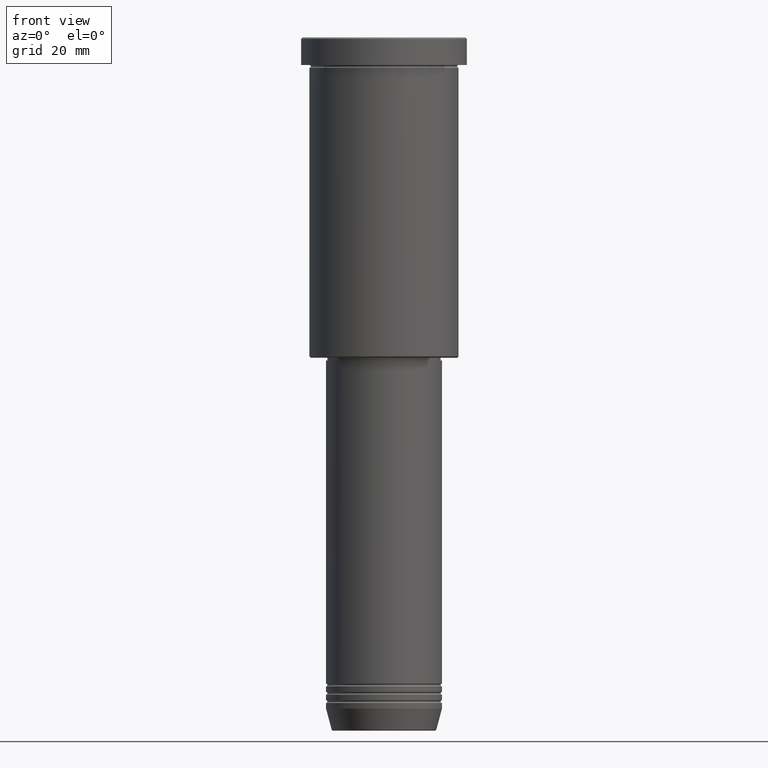
[diagram: clean part render]
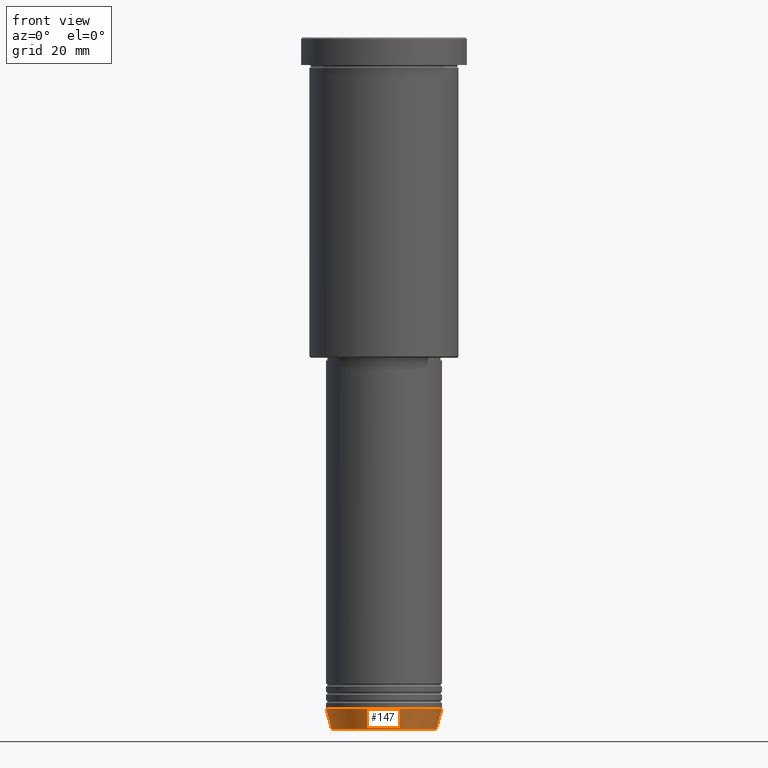
[diagram: same view with one face highlighted and labeled with its STEP entity id]
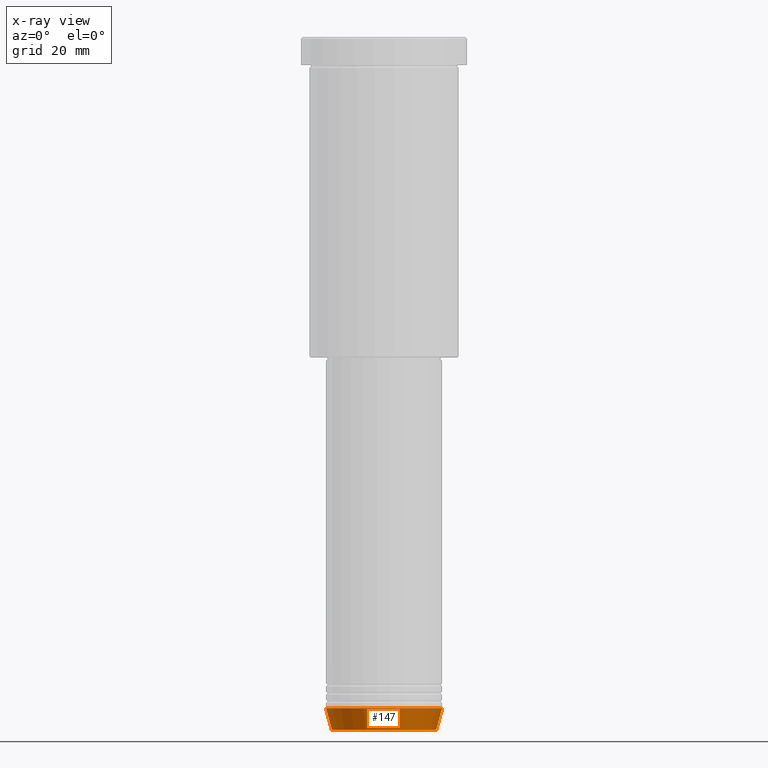
[diagram: x-ray of the same camera — body ghosted, the highlighted face saturated]
A machine part, front view. The second image highlights one B-rep face of the part: STEP entity #147.
The next image is the same camera in x-ray: the body ghosted, the highlighted face saturated — about 0% of this face is hidden behind the body in this view.
In plain terms, the highlighted conical surface has half-angle 15 deg.
Its self-contained STEP definition (entity closure, byte-faithful):
#8 = VECTOR ( 'NONE', #444, 1000.000000000000000 ) ;
#15 = CARTESIAN_POINT ( 'NONE',  ( 21.00000000000000000, 0.000000000000000000, -243.0000000000000284 ) ) ;
#80 = DIRECTION ( 'NONE',  ( 1.000000000000000000, 0.000000000000000000, 0.000000000000000000 ) ) ;
#99 = FACE_OUTER_BOUND ( 'NONE', #964, .T. ) ;
#147 = ADVANCED_FACE ( 'NONE', ( #99 ), #939, .T. ) ;
#196 = VERTEX_POINT ( 'NONE', #15 ) ;
#199 = CARTESIAN_POINT ( 'NONE',  ( 0.000000000000000000, 0.000000000000000000, -243.0000000000000284 ) ) ;
#209 = EDGE_CURVE ( 'NONE', #1073, #700, #477, .T. ) ;
#269 = DIRECTION ( 'NONE',  ( -0.000000000000000000, -0.000000000000000000, 1.000000000000000000 ) ) ;
#284 = DIRECTION ( 'NONE',  ( -0.2588190451025213501, 3.169619151431772337E-17, 0.9659258262890680902 ) ) ;
#286 = CARTESIAN_POINT ( 'NONE',  ( 18.95570587970606624, 0.000000000000000000, -250.6294095225512422 ) ) ;
#423 = EDGE_CURVE ( 'NONE', #1119, #196, #974, .T. ) ;
#444 = DIRECTION ( 'NONE',  ( 0.2588190451025213501, 0.000000000000000000, 0.9659258262890680902 ) ) ;
#451 = DIRECTION ( 'NONE',  ( -0.000000000000000000, -0.000000000000000000, 1.000000000000000000 ) ) ;
#453 = CIRCLE ( 'NONE', #726, 18.95570587970606624 ) ;
#459 = CARTESIAN_POINT ( 'NONE',  ( 0.000000000000000000, 0.000000000000000000, -243.0000000000000284 ) ) ;
#477 = LINE ( 'NONE', #1098, #906 ) ;
#501 = ORIENTED_EDGE ( 'NONE', *, *, #703, .T. ) ;
#593 = AXIS2_PLACEMENT_3D ( 'NONE', #199, #269, #739 ) ;
#644 = CIRCLE ( 'NONE', #1051, 21.00000000000000000 ) ;
#700 = VERTEX_POINT ( 'NONE', #962 ) ;
#703 = EDGE_CURVE ( 'NONE', #1073, #1119, #453, .T. ) ;
#726 = AXIS2_PLACEMENT_3D ( 'NONE', #1152, #774, #968 ) ;
#739 = DIRECTION ( 'NONE',  ( 1.000000000000000000, 0.000000000000000000, 0.000000000000000000 ) ) ;
#760 = ORIENTED_EDGE ( 'NONE', *, *, #209, .F. ) ;
#774 = DIRECTION ( 'NONE',  ( -0.000000000000000000, -0.000000000000000000, 1.000000000000000000 ) ) ;
#776 = ORIENTED_EDGE ( 'NONE', *, *, #941, .F. ) ;
#886 = ORIENTED_EDGE ( 'NONE', *, *, #423, .T. ) ;
#906 = VECTOR ( 'NONE', #284, 1000.000000000000000 ) ;
#939 = CONICAL_SURFACE ( 'NONE', #593, 21.00000000000000000, 0.2617993877991500740 ) ;
#941 = EDGE_CURVE ( 'NONE', #700, #196, #644, .T. ) ;
#962 = CARTESIAN_POINT ( 'NONE',  ( -21.00000000000000000, 2.571758278209441661E-15, -243.0000000000000284 ) ) ;
#964 = EDGE_LOOP ( 'NONE', ( #760, #501, #886, #776 ) ) ;
#968 = DIRECTION ( 'NONE',  ( 1.000000000000000000, 0.000000000000000000, 0.000000000000000000 ) ) ;
#974 = LINE ( 'NONE', #1158, #8 ) ;
#1051 = AXIS2_PLACEMENT_3D ( 'NONE', #459, #451, #80 ) ;
#1073 = VERTEX_POINT ( 'NONE', #1104 ) ;
#1098 = CARTESIAN_POINT ( 'NONE',  ( -21.00000000000000000, 2.571758278209441661E-15, -243.0000000000000284 ) ) ;
#1104 = CARTESIAN_POINT ( 'NONE',  ( -18.95570587970606624, 2.446581365662756125E-15, -250.6294095225512422 ) ) ;
#1119 = VERTEX_POINT ( 'NONE', #286 ) ;
#1152 = CARTESIAN_POINT ( 'NONE',  ( 0.000000000000000000, 0.000000000000000000, -250.6294095225512422 ) ) ;
#1158 = CARTESIAN_POINT ( 'NONE',  ( 21.00000000000000000, 0.000000000000000000, -243.0000000000000284 ) ) ;